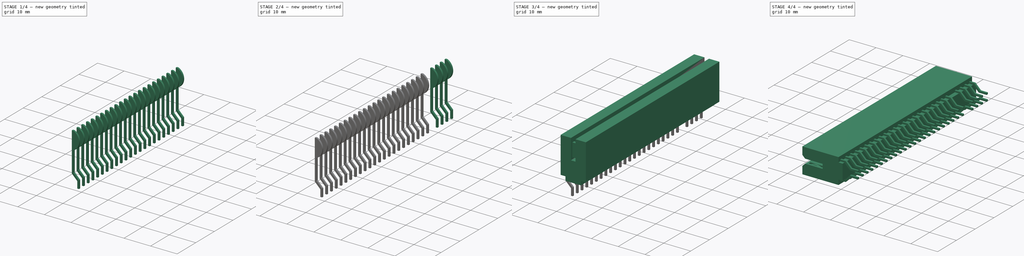
[diagram: build sequence overview — one tinted view per stage of 4, left to right]
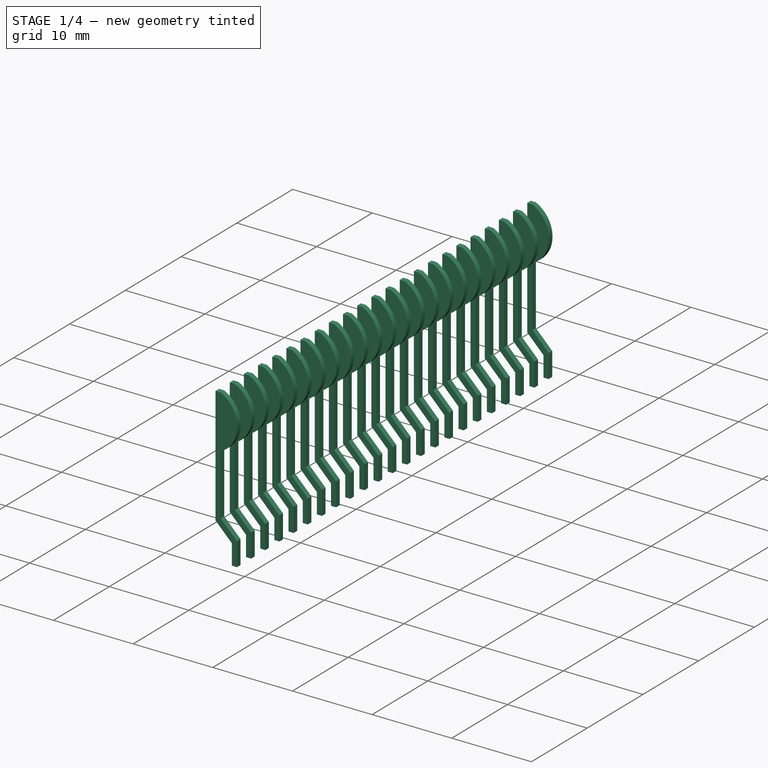
[diagram: stage 1 of 4 — iso view after this stage's code; geometry added in this stage tinted green]
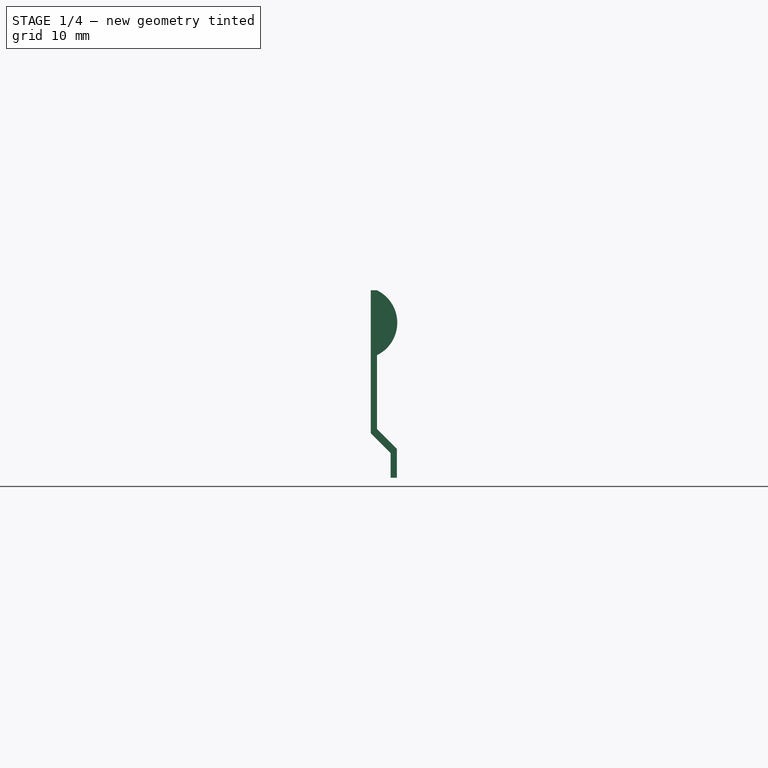
[diagram: stage 1 of 4 — front view after this stage's code; geometry added in this stage tinted green]
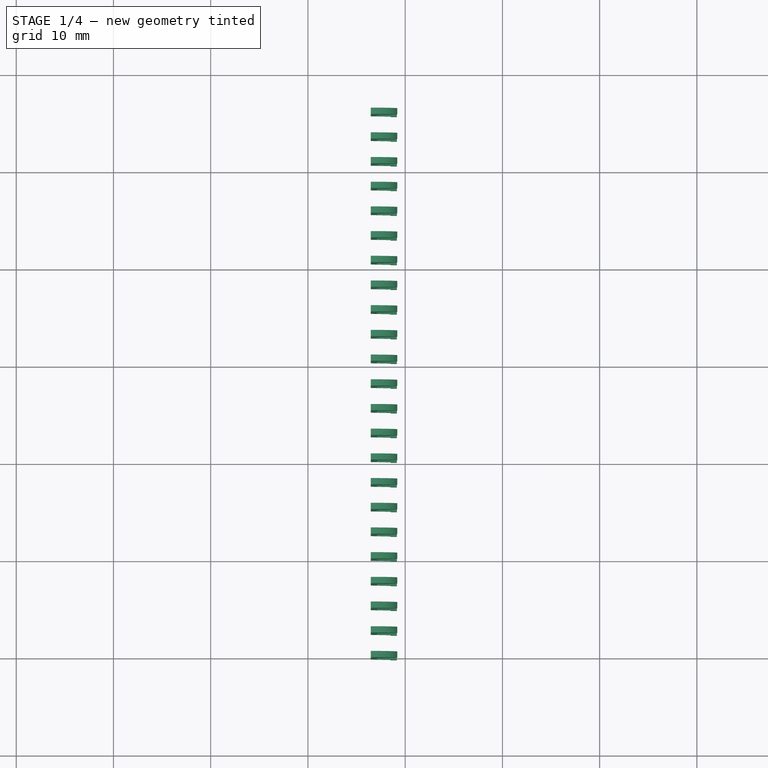
[diagram: stage 1 of 4 — top view after this stage's code; geometry added in this stage tinted green]
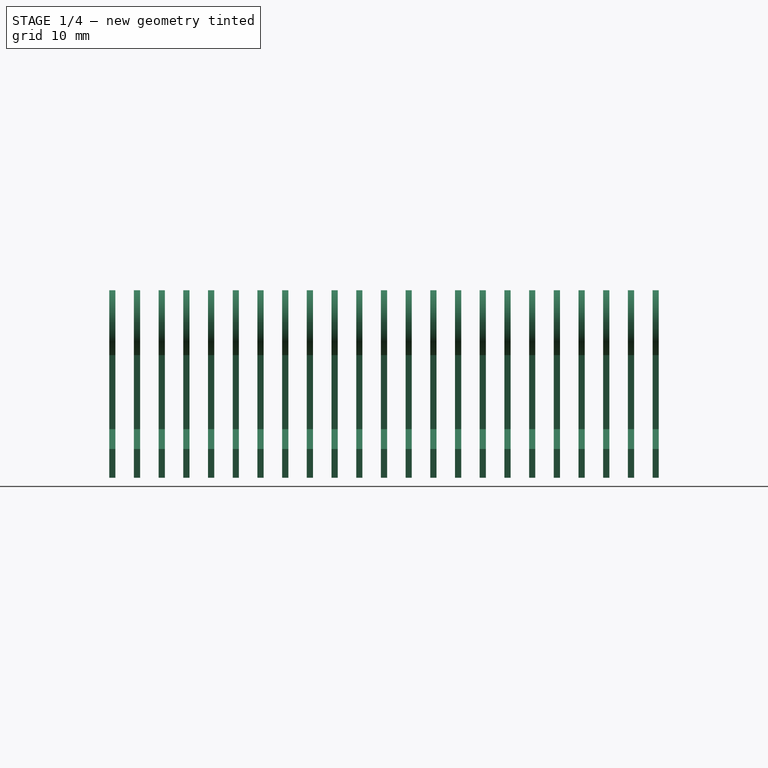
[diagram: stage 1 of 4 — right view after this stage's code; geometry added in this stage tinted green]
FCSTD DOCUMENT  (FreeCAD 0.17R7745 (Git))
Label: edge_conector
License: All rights reserved
LicenseURL: http://en.wikipedia.org/wiki/All_rights_reserved
objects: Sketcher::SketchObject×3, PartDesign::Pad×3, Part::FeaturePython×3, Part::Box×2, Part::Mirroring×2, Part::Cut×1, Part::Chamfer×1, Part::MultiFuse×1
note: 19 computed .brp shape members not serialized (recipe doc carries the construction recipe); baked Part::Feature solids carry a one-line shape summary decoded from their .brp

FEATURE [Sketcher::SketchObject] Sketch002
  Placement = pos=(0,-13.65,0) rot=(1,0,0;1.5708rad)
  sketch-geometry (9):
    g0: LineSegment StartX=0.85 StartY=-12.4762 StartZ=0 EndX=0.85 EndY=-9.5268 EndZ=0
    g1: LineSegment StartX=0.85 StartY=-9.5268 StartZ=0 EndX=2.90061 EndY=-7.47619 EndZ=0
    g2: LineSegment StartX=2.90061 StartY=-7.47619 StartZ=0 EndX=2.90061 EndY=0.124744 EndZ=0
    g3: LineSegment StartX=0.85 StartY=-12.4762 StartZ=0 EndX=1.49 EndY=-12.4762 EndZ=0
    g4: LineSegment StartX=1.49 StartY=-12.4762 StartZ=0 EndX=1.49 EndY=-9.94543 EndZ=0
    g5: LineSegment StartX=1.49 StartY=-9.94543 StartZ=0 EndX=3.54061 EndY=-7.89482 EndZ=0
    g6: LineSegment StartX=3.54061 StartY=-7.89482 StartZ=0 EndX=3.54061 EndY=6.79618 EndZ=0
    g7: LineSegment StartX=3.54061 StartY=6.79618 StartZ=0 EndX=2.90061 EndY=6.79618 EndZ=0
    g8: ArcOfCircle CenterX=4.5231 CenterY=3.46046 CenterZ=0 NormalX=0 NormalY=0 NormalZ=1 Radius=3.70938 StartAngle=2.0235 EndAngle=4.25968
  constraints (28):
    c: Vertical(g0)
    c: Coincident(g0,g1)
    c: Coincident(g1,g2)
    c: Coincident(g0,g3)
    c: Coincident(g3,g4)
    c: Vertical(g4)
    c: Coincident(g4,g5)
    c: Coincident(g5,g6)
    c: Vertical(g6)
    c: Horizontal(g3)
    c: DistanceX(g3,g3) = 0.64
    c: Parallel(g5,g1)
    c: Vertical(g2)
    c: DistanceX(g1,g5) = 0.64
    c: DistanceX(g-1,g0) = 0.85
    c: Angle(g4,g5) = 2.35619
    c: Coincident(g7,g6)
    c: Horizontal(g7)
    c: Equal(g7,g3)
    c: Coincident(g7,g8)
    c: Coincident(g2,g8)
    c: DistanceY(g6,g6) = 14.691
    c: Distance(g5) = 2.9
    c: DistanceY(g0,g1) = 5
    c: DistanceY(g2,g2) = 7.60093
    c: Radius(g8) = 3.70938
    c: DistanceY(g4,g4) = 2.53076
    c: DistanceY(g-1,g2) = 0.124744
FEATURE [PartDesign::Pad] Pad002  label="patilla001"
  Length = 0.64
  Length2 = 100
  Placement = pos=(0,-13.65,0) rot=(1,0,0;1.5708rad)
  Profile = -> Sketch002
  Type = 0
FEATURE [Part::FeaturePython] Array003  # Draft array (typed FeaturePython)
  Angle = 360
  ArrayType = 0
  Axis = (0,0,1)
  Base = -> Pad002
  Center = (0,0,0)
  Fuse = false
  IntervalAxis = (0,0,0)
  IntervalX = (0,0,0)
  IntervalY = (0,-2.54,0)
  IntervalZ = (0,0,0)
  NumberPolar = 1
  NumberX = 1
  NumberY = 23
  NumberZ = 1
FEATURE [Part::Mirroring] mirror001  label="Mirror of Array003"
  Base = (0,0,0)
  Normal = (1,0,0)
  Source = -> Array003
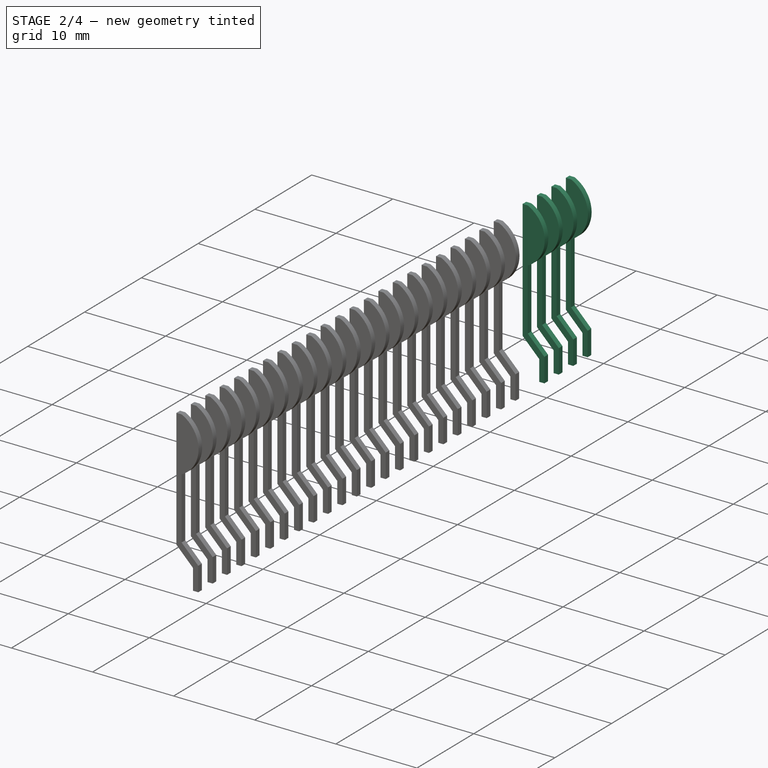
[diagram: stage 2 of 4 — iso view after this stage's code; geometry added in this stage tinted green]
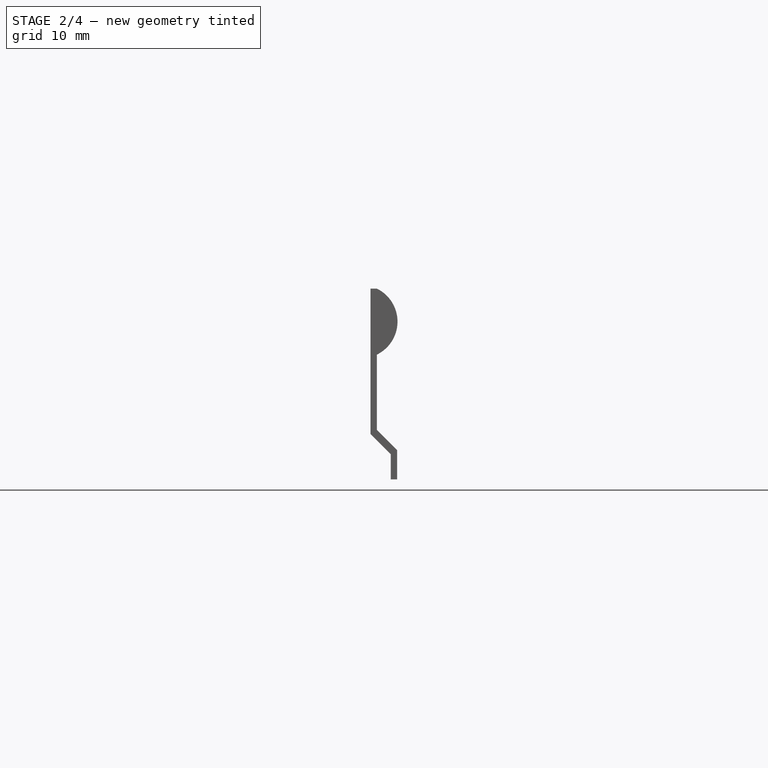
[diagram: stage 2 of 4 — front view after this stage's code; geometry added in this stage tinted green]
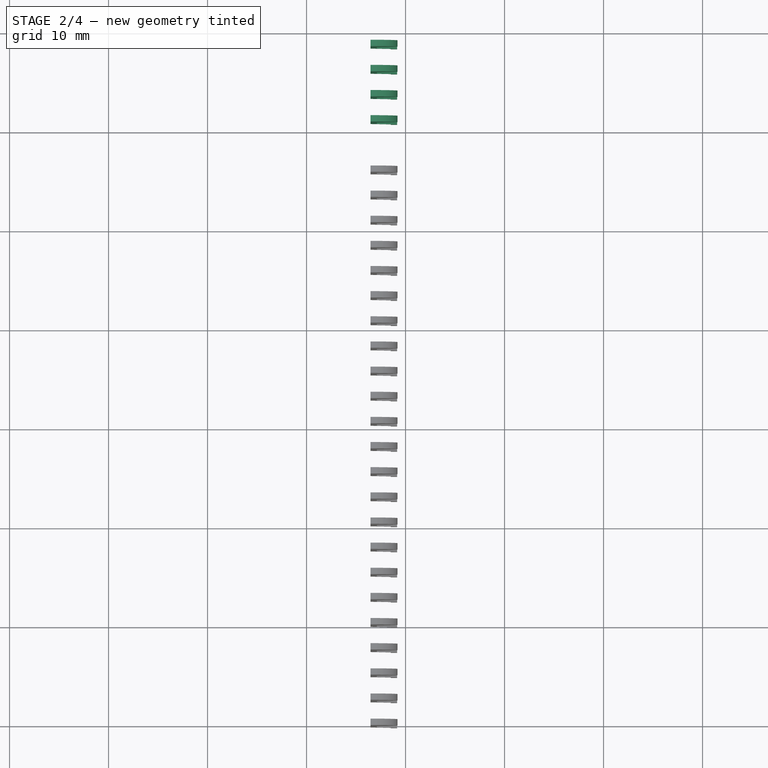
[diagram: stage 2 of 4 — top view after this stage's code; geometry added in this stage tinted green]
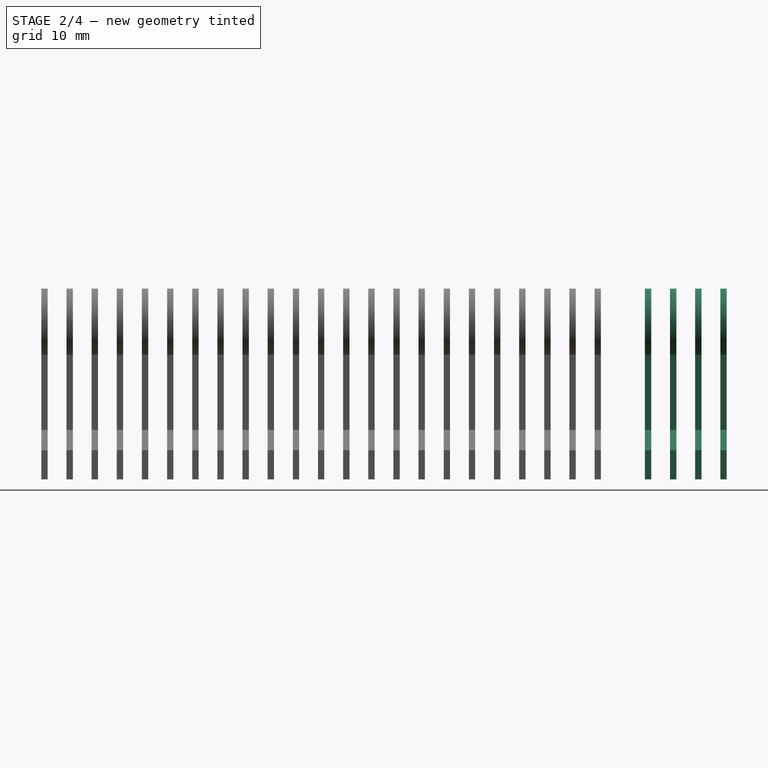
[diagram: stage 2 of 4 — right view after this stage's code; geometry added in this stage tinted green]
FEATURE [Sketcher::SketchObject] Sketch001
  Placement = pos=(0,-0.95,0) rot=(1,0,0;1.5708rad)
  sketch-geometry (9):
    g0: LineSegment StartX=0.85 StartY=-12.4762 StartZ=0 EndX=0.85 EndY=-9.5268 EndZ=0
    g1: LineSegment StartX=0.85 StartY=-9.5268 StartZ=0 EndX=2.90061 EndY=-7.47619 EndZ=0
    g2: LineSegment StartX=2.90061 StartY=-7.47619 StartZ=0 EndX=2.90061 EndY=0.124744 EndZ=0
    g3: LineSegment StartX=0.85 StartY=-12.4762 StartZ=0 EndX=1.49 EndY=-12.4762 EndZ=0
    g4: LineSegment StartX=1.49 StartY=-12.4762 StartZ=0 EndX=1.49 EndY=-9.94543 EndZ=0
    g5: LineSegment StartX=1.49 StartY=-9.94543 StartZ=0 EndX=3.54061 EndY=-7.89482 EndZ=0
    g6: LineSegment StartX=3.54061 StartY=-7.89482 StartZ=0 EndX=3.54061 EndY=6.79618 EndZ=0
    g7: LineSegment StartX=3.54061 StartY=6.79618 StartZ=0 EndX=2.90061 EndY=6.79618 EndZ=0
    g8: ArcOfCircle CenterX=4.5231 CenterY=3.46046 CenterZ=0 NormalX=0 NormalY=0 NormalZ=1 Radius=3.70938 StartAngle=2.0235 EndAngle=4.25968
  constraints (28):
    c: Vertical(g0)
    c: Coincident(g0,g1)
    c: Coincident(g1,g2)
    c: Coincident(g0,g3)
    c: Coincident(g3,g4)
    c: Vertical(g4)
    c: Coincident(g4,g5)
    c: Coincident(g5,g6)
    c: Vertical(g6)
    c: Horizontal(g3)
    c: DistanceX(g3,g3) = 0.64
    c: Parallel(g5,g1)
    c: Vertical(g2)
    c: DistanceX(g1,g5) = 0.64
    c: DistanceX(g-1,g0) = 0.85
    c: Angle(g4,g5) = 2.35619
    c: Coincident(g7,g6)
    c: Horizontal(g7)
    c: Equal(g7,g3)
    c: Coincident(g7,g8)
    c: Coincident(g2,g8)
    c: DistanceY(g6,g6) = 14.691
    c: Distance(g5) = 2.9
    c: DistanceY(g0,g1) = 5
    c: DistanceY(g2,g2) = 7.60093
    c: Radius(g8) = 3.70938
    c: DistanceY(g4,g4) = 2.53076
    c: DistanceY(g-1,g2) = 0.124744
FEATURE [PartDesign::Pad] Pad001  label="patilla"
  Length = 0.64
  Length2 = 100
  Placement = pos=(0,-0.95,0) rot=(1,0,0;1.5708rad)
  Profile = -> Sketch001
  Type = 0
FEATURE [Part::FeaturePython] Array  # Draft array (typed FeaturePython)
  Angle = 360
  ArrayType = 0
  Axis = (0,0,1)
  Base = -> Pad001
  Center = (0,0,0)
  Fuse = false
  IntervalAxis = (0,0,0)
  IntervalX = (0,-2,0)
  IntervalY = (0,-2.54,0)
  IntervalZ = (0,0,0)
  NumberPolar = 1
  NumberX = 1
  NumberY = 4
  NumberZ = 1
FEATURE [Part::Mirroring] mirror  label="Mirror of Array"
  Base = (0,0,0)
  Normal = (1,0,0)
  Source = -> Array
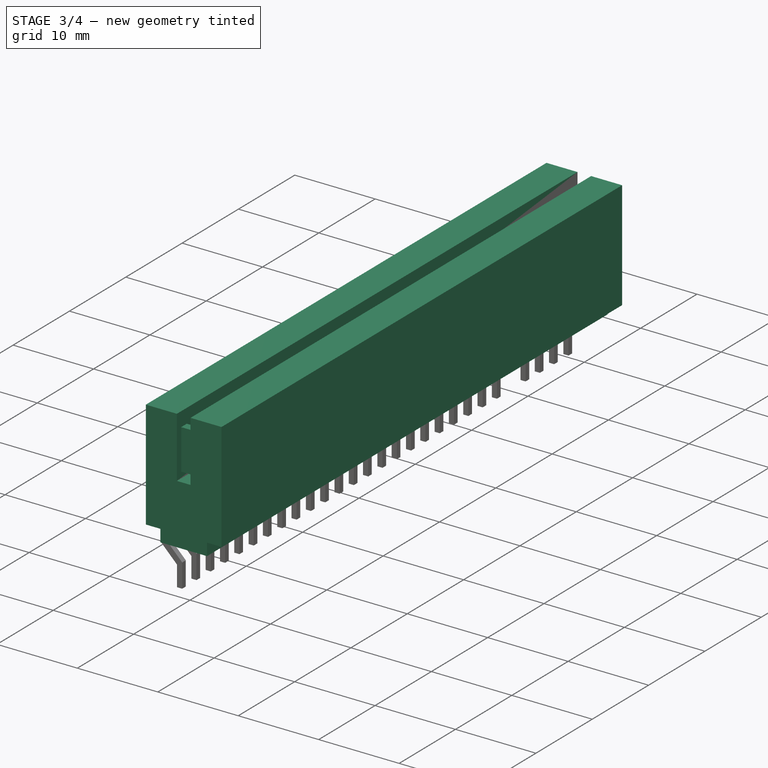
[diagram: stage 3 of 4 — iso view after this stage's code; geometry added in this stage tinted green]
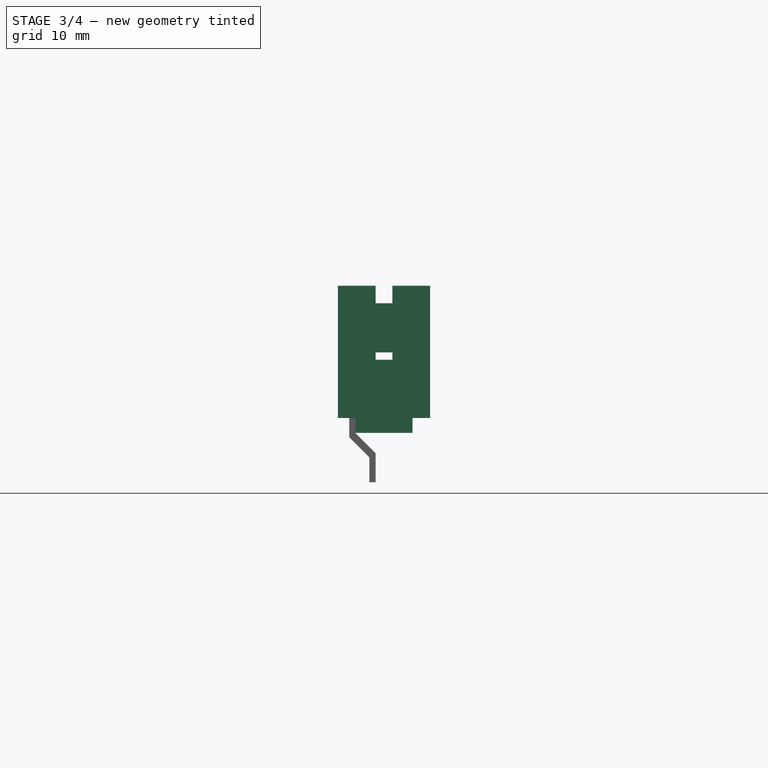
[diagram: stage 3 of 4 — front view after this stage's code; geometry added in this stage tinted green]
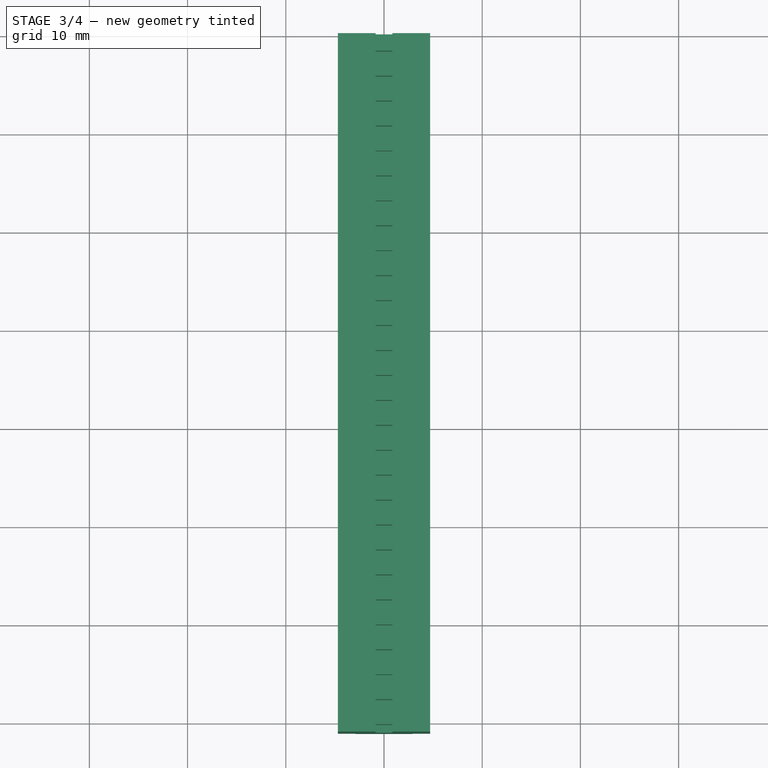
[diagram: stage 3 of 4 — top view after this stage's code; geometry added in this stage tinted green]
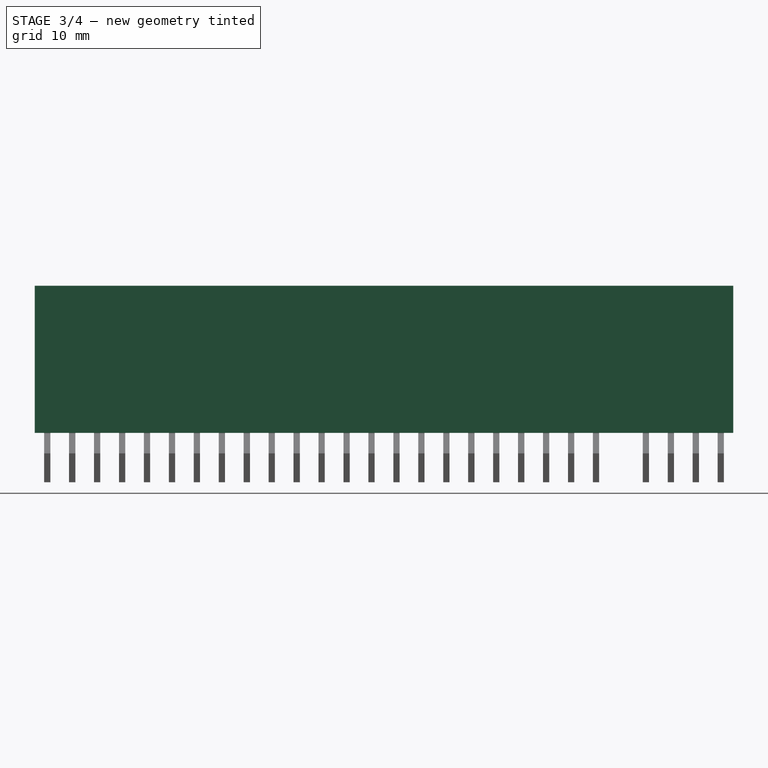
[diagram: stage 3 of 4 — right view after this stage's code; geometry added in this stage tinted green]
FEATURE [Sketcher::SketchObject] Sketch
  Placement = pos=(0,0,0) rot=(1,0,0;1.5708rad)
  sketch-geometry (13):
    g0: LineSegment StartX=-0.85 StartY=7.54 StartZ=0 EndX=-4.7 EndY=7.54 EndZ=0
    g1: LineSegment StartX=-4.7 StartY=7.54 StartZ=0 EndX=-4.7 EndY=-5.93 EndZ=0
    g2: LineSegment StartX=-4.7 StartY=-5.93 StartZ=0 EndX=-2.9 EndY=-5.93 EndZ=0
    g3: LineSegment StartX=-2.9 StartY=-5.93 StartZ=0 EndX=-2.9 EndY=-7.45 EndZ=0
    g4: LineSegment StartX=-2.9 StartY=-7.45 StartZ=0 EndX=2.9 EndY=-7.45 EndZ=0
    g5: LineSegment StartX=2.9 StartY=-7.45 StartZ=0 EndX=2.9 EndY=-5.93 EndZ=0
    g6: LineSegment StartX=2.9 StartY=-5.93 StartZ=0 EndX=4.7 EndY=-5.93 EndZ=0
    g7: LineSegment StartX=4.7 StartY=-5.93 StartZ=0 EndX=4.7 EndY=7.54 EndZ=0
    g8: LineSegment StartX=4.7 StartY=7.54 StartZ=0 EndX=0.85 EndY=7.54 EndZ=0
    g9: LineSegment StartX=0.85 StartY=7.54 StartZ=0 EndX=0.85 EndY=0 EndZ=0
    g10: LineSegment StartX=0.85 StartY=0 StartZ=0 EndX=-0.85 EndY=0 EndZ=0
    g11: LineSegment StartX=-0.85 StartY=0 StartZ=0 EndX=-0.85 EndY=7.54 EndZ=0
    g12: LineSegment [constr] StartX=-0.85 StartY=7.54 StartZ=0 EndX=0.85 EndY=7.54 EndZ=0
  constraints (39):
    c: Horizontal(g0)
    c: Coincident(g0,g1)
    c: Vertical(g1)
    c: Coincident(g1,g2)
    c: Horizontal(g2)
    c: Coincident(g2,g3)
    c: Vertical(g3)
    c: Coincident(g3,g4)
    c: Horizontal(g4)
    c: Coincident(g4,g5)
    c: Vertical(g5)
    c: Coincident(g5,g6)
    c: Horizontal(g6)
    c: Coincident(g6,g7)
    c: Vertical(g7)
    c: Coincident(g7,g8)
    c: Horizontal(g8)
    c: Coincident(g8,g9)
    c: Vertical(g9)
    c: Coincident(g9,g10)
    c: Horizontal(g10)
    c: Coincident(g10,g11)
    c: Coincident(g11,g0)
    c: Vertical(g11)
    c: Symmetric(g3,g4,g-2)
    c: Symmetric(g10,g9,g-2)
    c: Equal(g0,g8)
    c: Equal(g2,g6)
    c: Equal(g7,g1)
    c: DistanceX(g10,g10) = 1.7
    c: DistanceX(g0,g7) = 9.4
    c: DistanceY(g7,g7) = 13.47
    c: Coincident(g12,g0)
    c: Coincident(g12,g8)
    c: Horizontal(g12)
    c: DistanceY(g11,g11) = 7.54
    c: PointOnObject(g-1,g10)
    c: DistanceY(g5,g5) = 1.52
    c: DistanceX(g4,g4) = 5.8
FEATURE [PartDesign::Pad] Pad
  Length = 71.12
  Length2 = 100
  Placement = pos=(0,0,0) rot=(1,0,0;1.5708rad)
  Profile = -> Sketch
  Type = 0
FEATURE [Part::Box] Box004  label="Cubo004"
  AttacherType = Attacher::AttachEngine3D
  Height = 5
  Length = 5
  Placement = pos=(-2.5,-1.77,0.75) rot=(0,0,1;0rad)
  Width = 1
FEATURE [Part::FeaturePython] Array002  # Draft array (typed FeaturePython)
  Angle = 360
  ArrayType = 0
  Axis = (0,0,1)
  Base = -> Box004
  Center = (0,0,0)
  Fuse = false
  IntervalAxis = (0,0,0)
  IntervalX = (0,0,0)
  IntervalY = (0,-2.54,0)
  IntervalZ = (0,0,0)
  NumberPolar = 1
  NumberX = 1
  NumberY = 28
  NumberZ = 1
FEATURE [Part::Box] Box005  label="slot"
  AttacherType = Attacher::AttachEngine3D
  Height = 5
  Length = 5
  Placement = pos=(-2.5,-11.93,0.75) rot=(0,0,1;0rad)
  Width = 1
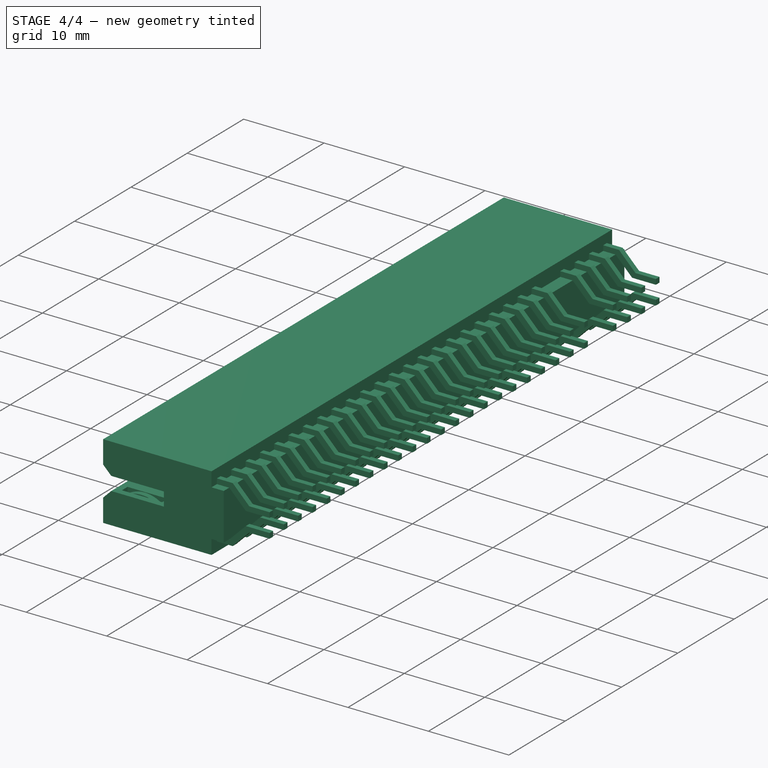
[diagram: stage 4 of 4 — iso view after this stage's code; geometry added in this stage tinted green]
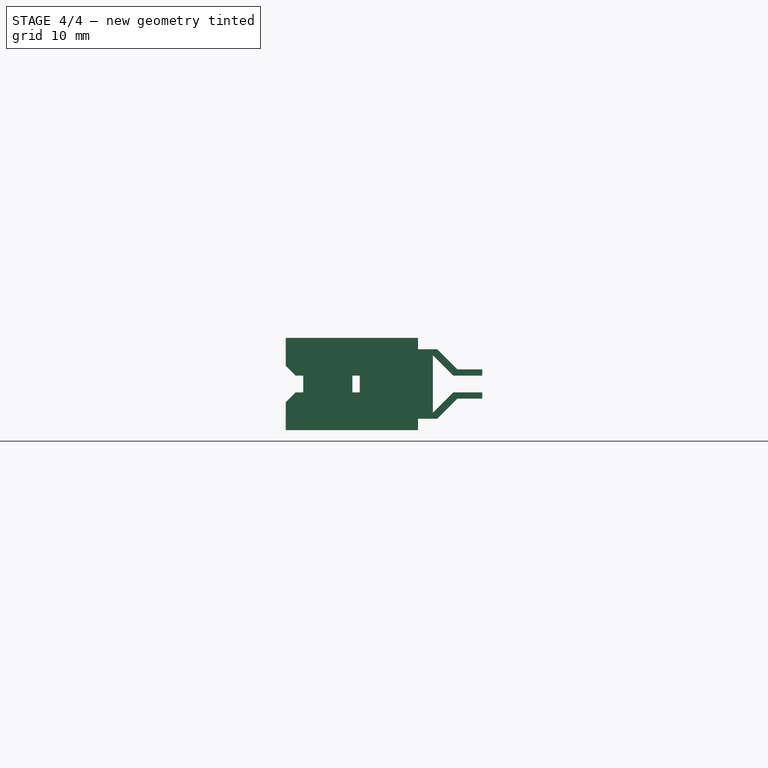
[diagram: stage 4 of 4 — front view after this stage's code; geometry added in this stage tinted green]
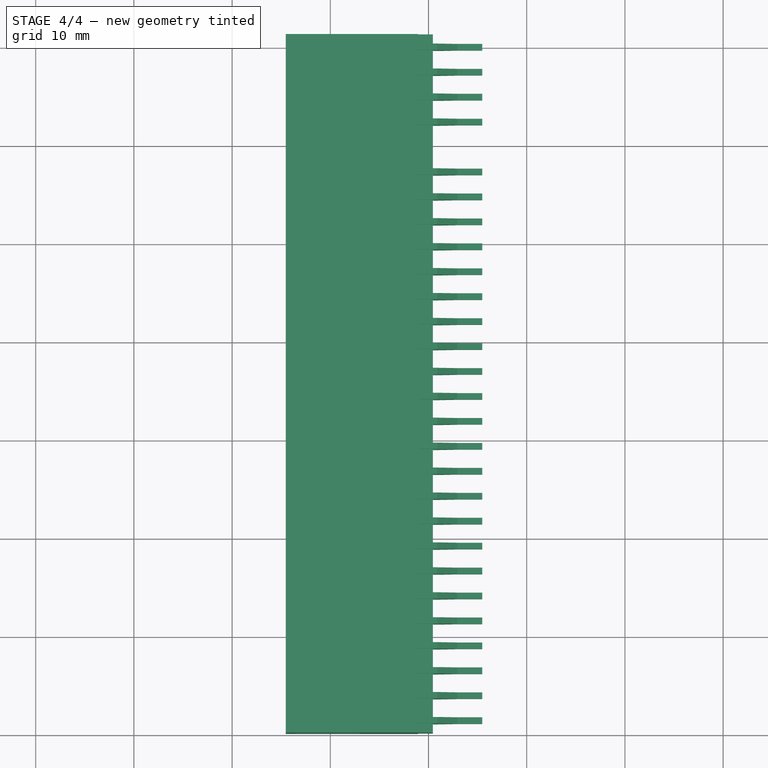
[diagram: stage 4 of 4 — top view after this stage's code; geometry added in this stage tinted green]
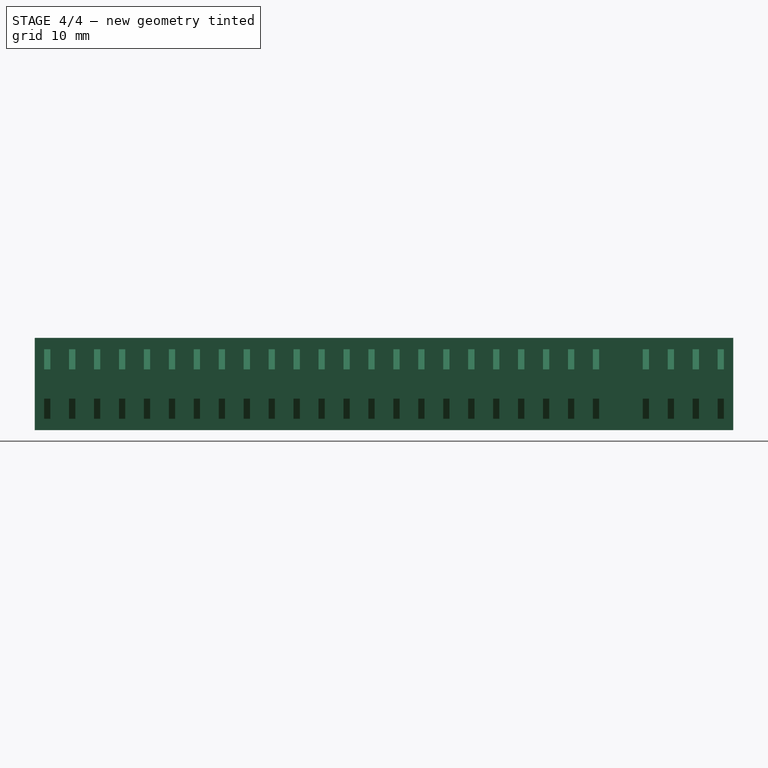
[diagram: stage 4 of 4 — right view after this stage's code; geometry added in this stage tinted green]
FEATURE [Part::Cut] Cut004
  Base = -> Pad
  Tool = -> Array002
FEATURE [Part::Chamfer] Chamfer  label="carcasa"
  Base = -> Cut004
  Edges = 2 edges r=1: [Edge1,Edge372]
FEATURE [Part::MultiFuse] Fusion
  Placement = pos=(-17,1.27,-85) rot=(0,-1,0;1.5708rad)
  Shapes = -> [mirror001,mirror,Box005,Array003,Chamfer,Array]
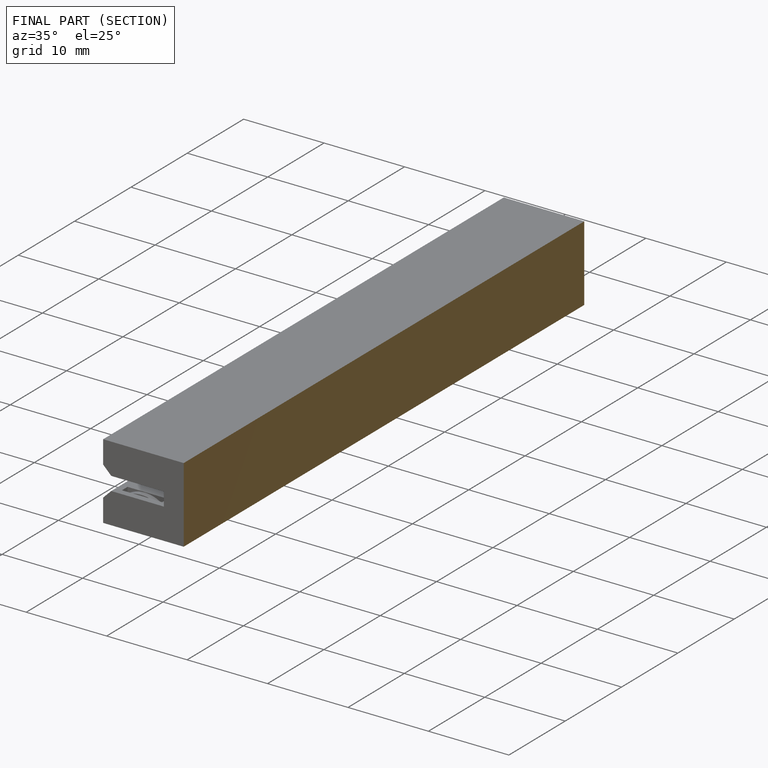
[diagram: finished part — half-section view (interior)]
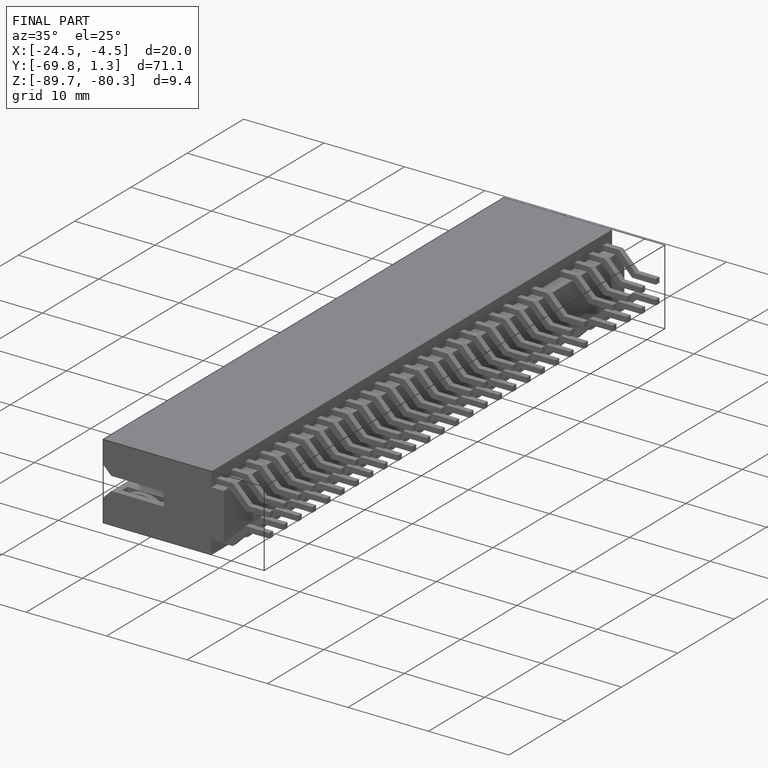
[diagram: finished part — iso view with bounding-box wireframe]
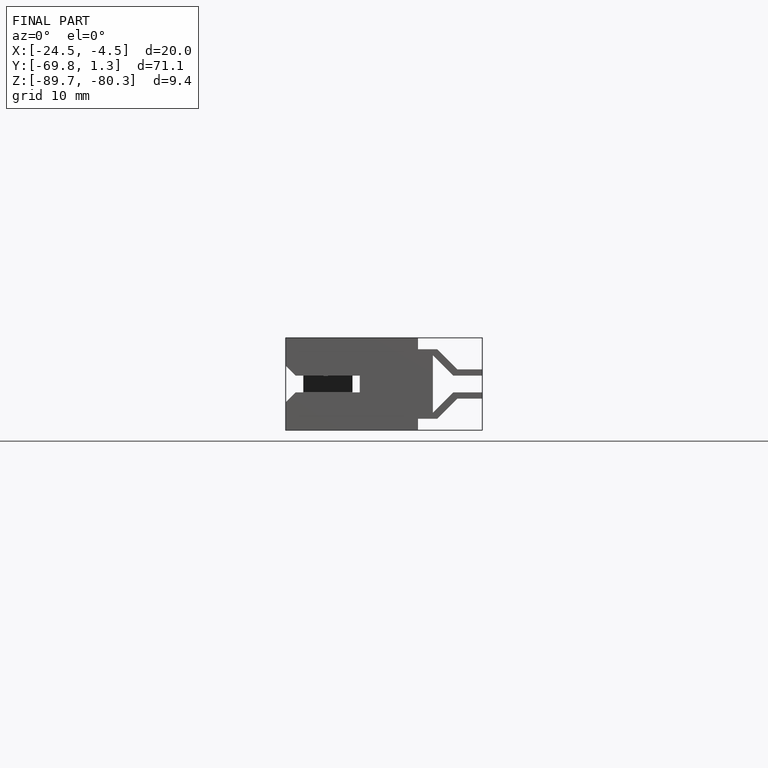
[diagram: finished part — front view with bounding-box wireframe]
